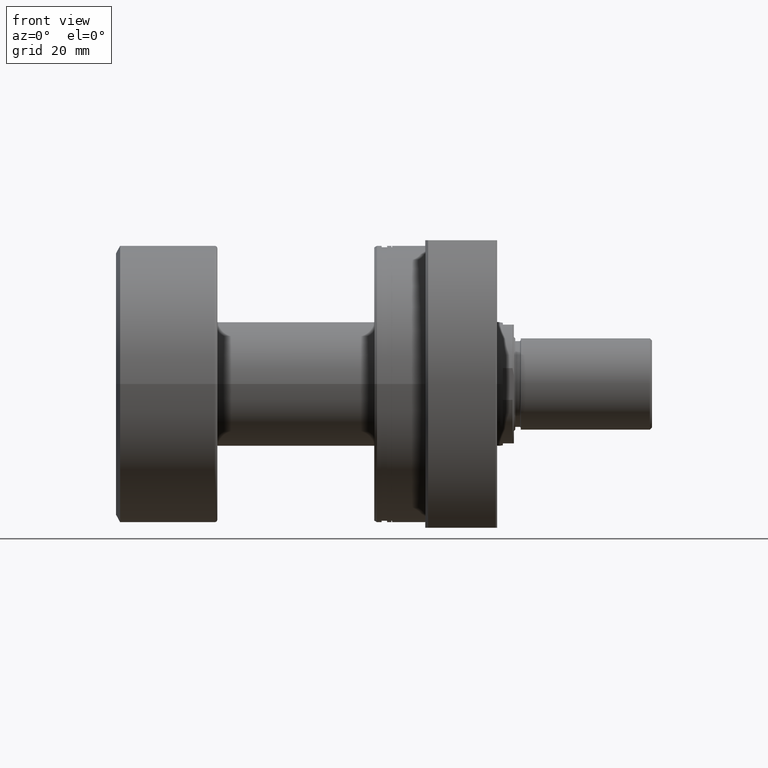
[diagram: clean part render]
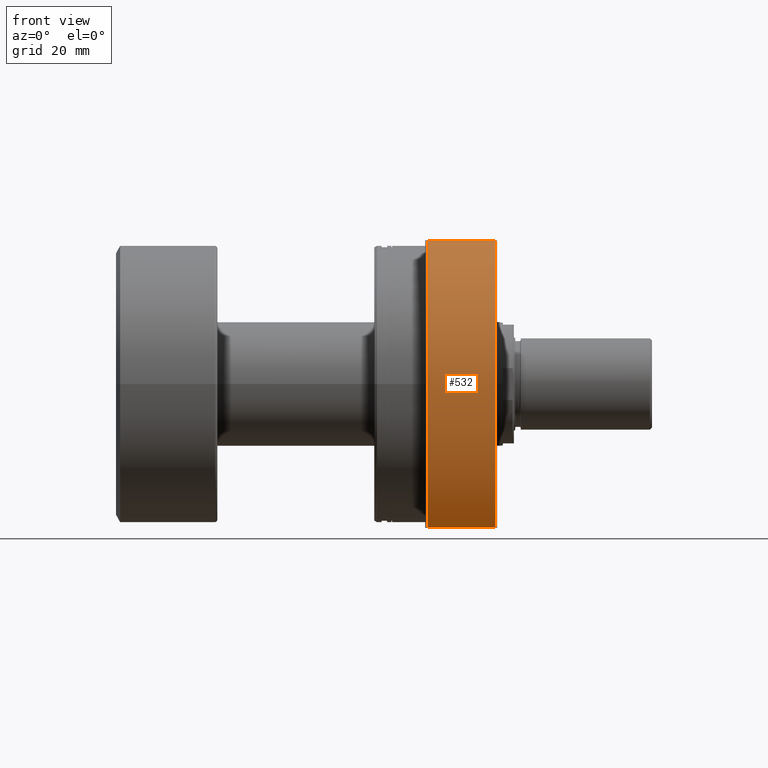
[diagram: same view with one face highlighted and labeled with its STEP entity id]
A machine part, front view. The second image highlights one B-rep face of the part: STEP entity #532.
In plain terms, the highlighted cylindrical surface (partial cylindrical patch) has radius 73.5 mm, axis along (1, 0, 0).
Its self-contained STEP definition (entity closure, byte-faithful):
#4 = CARTESIAN_POINT ( 'NONE',  ( 44.00000000000008527, 2.421773445504882888E-15, 0.000000000000000000 ) ) ;
#104 = CARTESIAN_POINT ( 'NONE',  ( 19.49999999999999289, -51.94468211472581487, 52.00000000000000000 ) ) ;
#172 = VERTEX_POINT ( 'NONE', #480 ) ;
#188 = LINE ( 'NONE', #3641, #1297 ) ;
#246 = DIRECTION ( 'NONE',  ( -9.440671978105083104E-17, 1.000000000000000000, 0.000000000000000000 ) ) ;
#258 = AXIS2_PLACEMENT_3D ( 'NONE', #340, #2914, #2627 ) ;
#340 = CARTESIAN_POINT ( 'NONE',  ( 44.00000000000008527, 2.421773445504882888E-15, 0.000000000000000000 ) ) ;
#355 = CARTESIAN_POINT ( 'NONE',  ( -3.615163723935665985E-12, -51.94468211472525354, 52.00000000000000000 ) ) ;
#410 = LINE ( 'NONE', #355, #3085 ) ;
#430 = DIRECTION ( 'NONE',  ( 1.000000000000000000, -2.886466111666351885E-14, -0.000000000000000000 ) ) ;
#432 = EDGE_CURVE ( 'NONE', #3189, #527, #2110, .T. ) ;
#480 = CARTESIAN_POINT ( 'NONE',  ( 44.00000000000007816, -51.94468211472653252, -51.99999999999999289 ) ) ;
#527 = VERTEX_POINT ( 'NONE', #2049 ) ;
#532 = ADVANCED_FACE ( 'NONE', ( #1561 ), #2723, .T. ) ;
#539 = DIRECTION ( 'NONE',  ( 1.000000000000000000, 5.504030557965630938E-17, -0.000000000000000000 ) ) ;
#600 = EDGE_CURVE ( 'NONE', #527, #172, #2574, .T. ) ;
#830 = ORIENTED_EDGE ( 'NONE', *, *, #3483, .T. ) ;
#847 = VERTEX_POINT ( 'NONE', #1472 ) ;
#978 = VERTEX_POINT ( 'NONE', #104 ) ;
#1158 = ORIENTED_EDGE ( 'NONE', *, *, #600, .F. ) ;
#1297 = VECTOR ( 'NONE', #2750, 1000.000000000000000 ) ;
#1326 = CARTESIAN_POINT ( 'NONE',  ( 19.49999999999999645, 1.073285958803297879E-15, 0.000000000000000000 ) ) ;
#1472 = CARTESIAN_POINT ( 'NONE',  ( 19.49999999999999289, -51.94468211472582198, -51.99999999999999289 ) ) ;
#1478 = DIRECTION ( 'NONE',  ( 1.000000000000000000, 5.504030557965630938E-17, -0.000000000000000000 ) ) ;
#1561 = FACE_OUTER_BOUND ( 'NONE', #1911, .T. ) ;
#1603 = DIRECTION ( 'NONE',  ( -9.440671978105083104E-17, 1.000000000000000000, 0.000000000000000000 ) ) ;
#1754 = AXIS2_PLACEMENT_3D ( 'NONE', #4, #539, #246 ) ;
#1911 = EDGE_LOOP ( 'NONE', ( #2607, #3017, #830, #1158, #2175 ) ) ;
#2049 = CARTESIAN_POINT ( 'NONE',  ( 44.00000000000009237, -73.49999999999991473, 0.000000000000000000 ) ) ;
#2110 = CIRCLE ( 'NONE', #1754, 73.49999999999991473 ) ;
#2175 = ORIENTED_EDGE ( 'NONE', *, *, #432, .F. ) ;
#2208 = DIRECTION ( 'NONE',  ( 1.000000000000000000, 5.504030557965630938E-17, -0.000000000000000000 ) ) ;
#2242 = AXIS2_PLACEMENT_3D ( 'NONE', #1326, #2208, #2456 ) ;
#2456 = DIRECTION ( 'NONE',  ( -4.720335989052541552E-17, 1.000000000000000000, 0.000000000000000000 ) ) ;
#2515 = AXIS2_PLACEMENT_3D ( 'NONE', #3580, #1478, #1603 ) ;
#2530 = EDGE_CURVE ( 'NONE', #978, #847, #3482, .T. ) ;
#2574 = CIRCLE ( 'NONE', #258, 73.49999999999991473 ) ;
#2607 = ORIENTED_EDGE ( 'NONE', *, *, #3420, .F. ) ;
#2627 = DIRECTION ( 'NONE',  ( -9.440671978105083104E-17, 1.000000000000000000, 0.000000000000000000 ) ) ;
#2723 = CYLINDRICAL_SURFACE ( 'NONE', #2515, 73.49999999999991473 ) ;
#2750 = DIRECTION ( 'NONE',  ( 1.000000000000000000, -2.886466111666351885E-14, -0.000000000000000000 ) ) ;
#2829 = CARTESIAN_POINT ( 'NONE',  ( 44.00000000000007816, -51.94468211472652541, 52.00000000000000000 ) ) ;
#2914 = DIRECTION ( 'NONE',  ( 1.000000000000000000, 5.504030557965630938E-17, -0.000000000000000000 ) ) ;
#3017 = ORIENTED_EDGE ( 'NONE', *, *, #2530, .T. ) ;
#3085 = VECTOR ( 'NONE', #430, 1000.000000000000000 ) ;
#3189 = VERTEX_POINT ( 'NONE', #2829 ) ;
#3420 = EDGE_CURVE ( 'NONE', #978, #3189, #410, .T. ) ;
#3482 = CIRCLE ( 'NONE', #2242, 73.49999999999991473 ) ;
#3483 = EDGE_CURVE ( 'NONE', #847, #172, #188, .T. ) ;
#3580 = CARTESIAN_POINT ( 'NONE',  ( 44.50000000000000000, 2.449293598294705724E-15, 0.000000000000000000 ) ) ;
#3641 = CARTESIAN_POINT ( 'NONE',  ( -3.615163723935665985E-12, -51.94468211472526065, -51.99999999999999289 ) ) ;